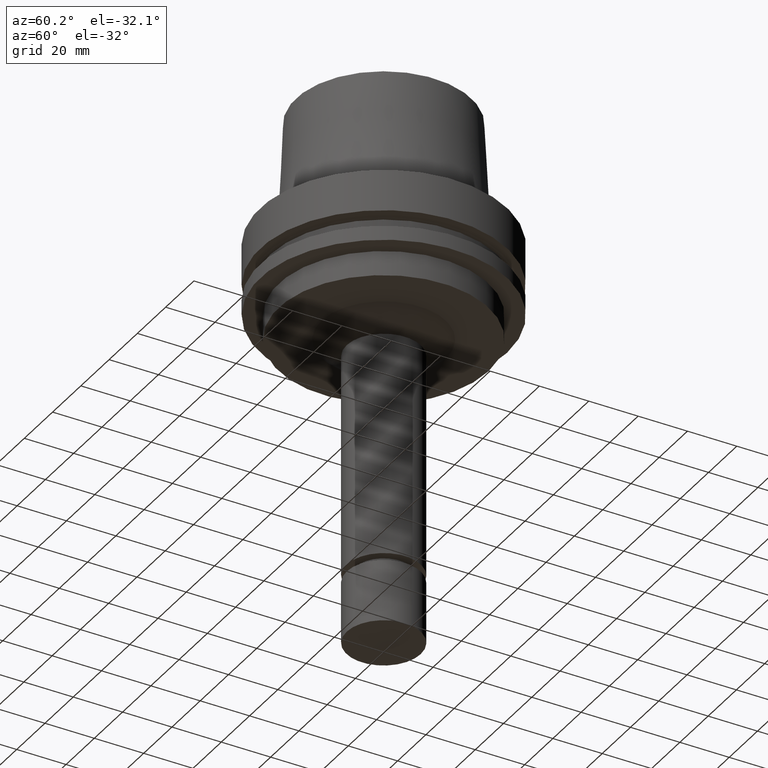
[diagram: clean part render]
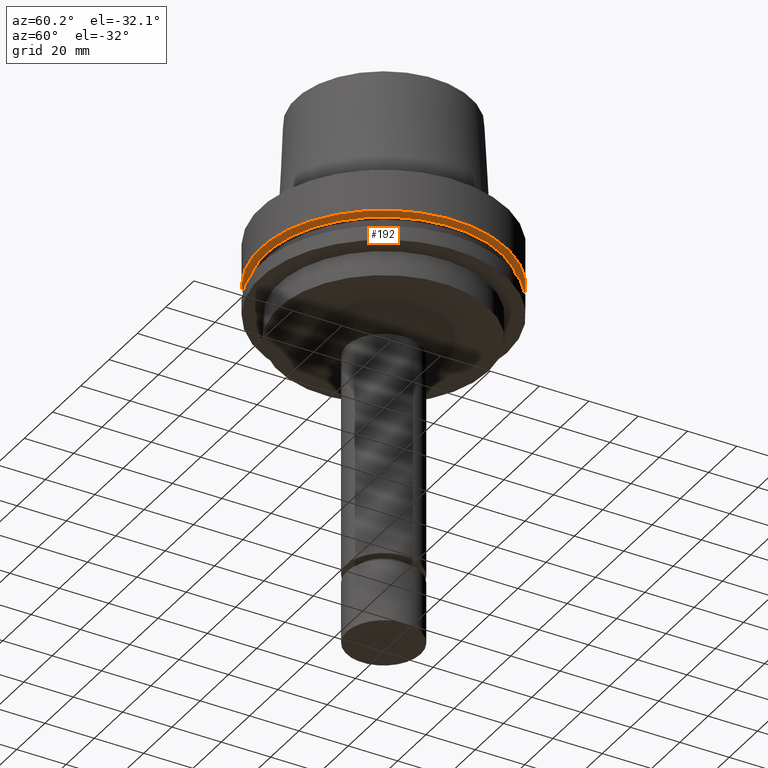
[diagram: same view with one face highlighted and labeled with its STEP entity id]
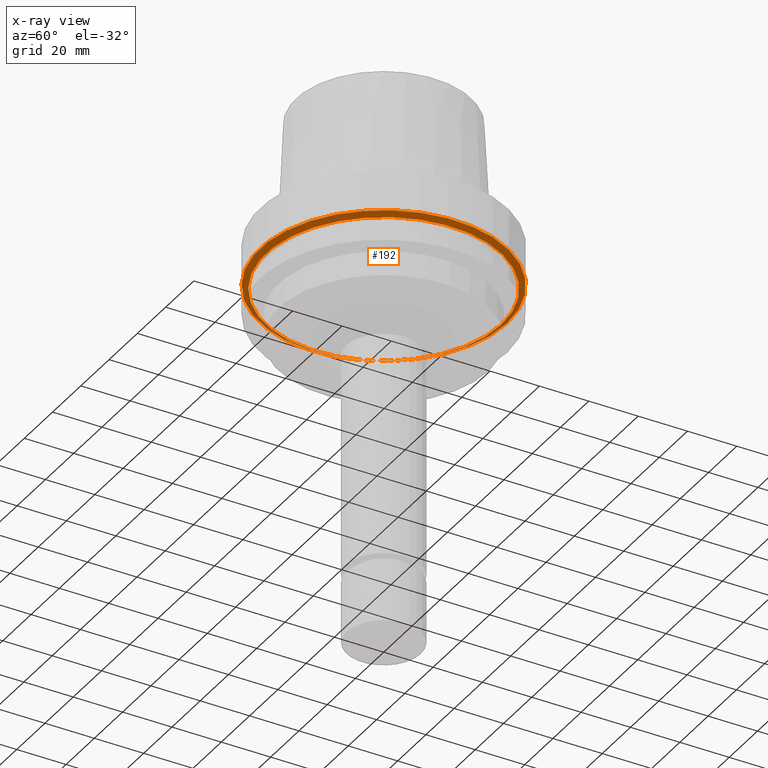
[diagram: x-ray of the same camera — body ghosted, the highlighted face saturated]
A machine part, auxiliary view. The second image highlights one B-rep face of the part: STEP entity #192.
The next image is the same camera in x-ray: the body ghosted, the highlighted face saturated — about 8% of this face is hidden behind the body in this view.
In plain terms, the highlighted conical surface has half-angle 60 deg.
Its self-contained STEP definition (entity closure, byte-faithful):
#94=EDGE_CURVE('Unnamed[1]',#242,#242,#243,.T.);
#138=EDGE_CURVE('Unnamed[1]',#310,#310,#311,.T.);
#192=ADVANCED_FACE('Unnamed[1]',(#392,#393),#394,.T.);
#242=VERTEX_POINT('',#447);
#243=CIRCLE('',#448,50.0);
#310=VERTEX_POINT('',#531);
#311=CIRCLE('',#532,47.62259526);
#392=FACE_BOUND('',#633,.T.);
#393=FACE_BOUND('',#634,.T.);
#394=CONICAL_SURFACE('',#635,48.81129763,1.04719755328238);
#447=CARTESIAN_POINT('',(1.0257889421431E-015,50.0,-16.75240474));
#448=AXIS2_PLACEMENT_3D('',#678,#679,#680);
#531=CARTESIAN_POINT('',(1.10983616172729E-015,47.62259526,-18.125));
#532=AXIS2_PLACEMENT_3D('',#753,#754,#755);
#633=EDGE_LOOP('',(#843));
#634=EDGE_LOOP('',(#844));
#635=AXIS2_PLACEMENT_3D('',#845,#846,#847);
#678=CARTESIAN_POINT('',(1.0257889421431E-015,2.05157788428619E-015,-16.75240474));
#679=DIRECTION('',(6.12323399573677E-017,1.22464679914735E-016,-1.0));
#680=DIRECTION('',(-1.23259516440783E-032,1.0,1.22464679914735E-016));
#753=CARTESIAN_POINT('',(1.10983616172729E-015,2.21967232345458E-015,-18.125));
#754=DIRECTION('',(6.12323399573676E-017,1.22464679914735E-016,-1.0));
#755=DIRECTION('',(-1.23259516440783E-032,1.0,1.22464679914735E-016));
#843=ORIENTED_EDGE('',*,*,#138,.F.);
#844=ORIENTED_EDGE('',*,*,#94,.T.);
#845=CARTESIAN_POINT('',(1.06781255193519E-015,2.13562510387038E-015,-17.43870237));
#846=DIRECTION('',(-6.12323399573677E-017,-1.22464679914735E-016,1.0));
#847=DIRECTION('',(-1.23259516440783E-032,1.0,1.22464679914735E-016));